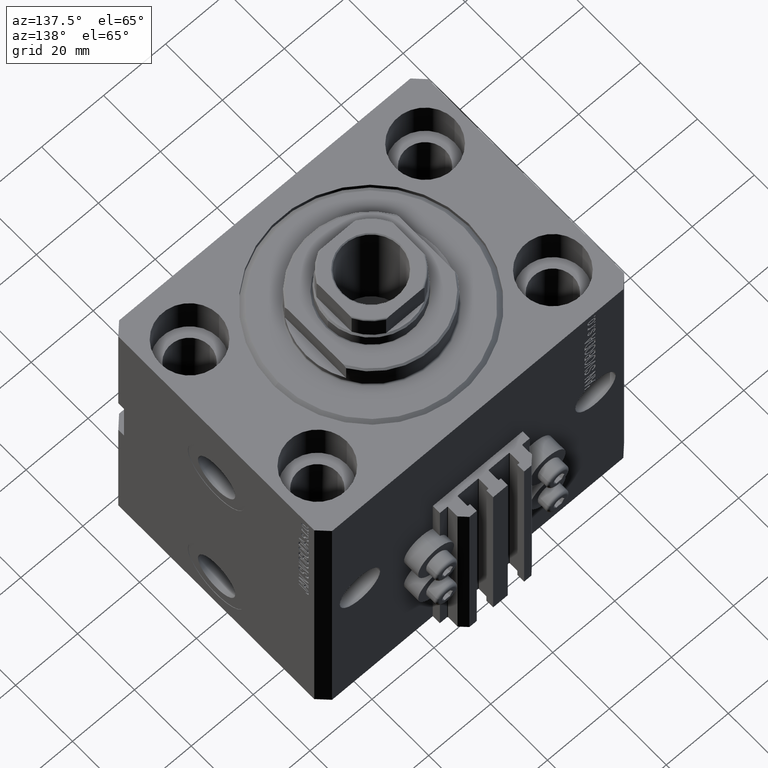
[diagram: clean part render]
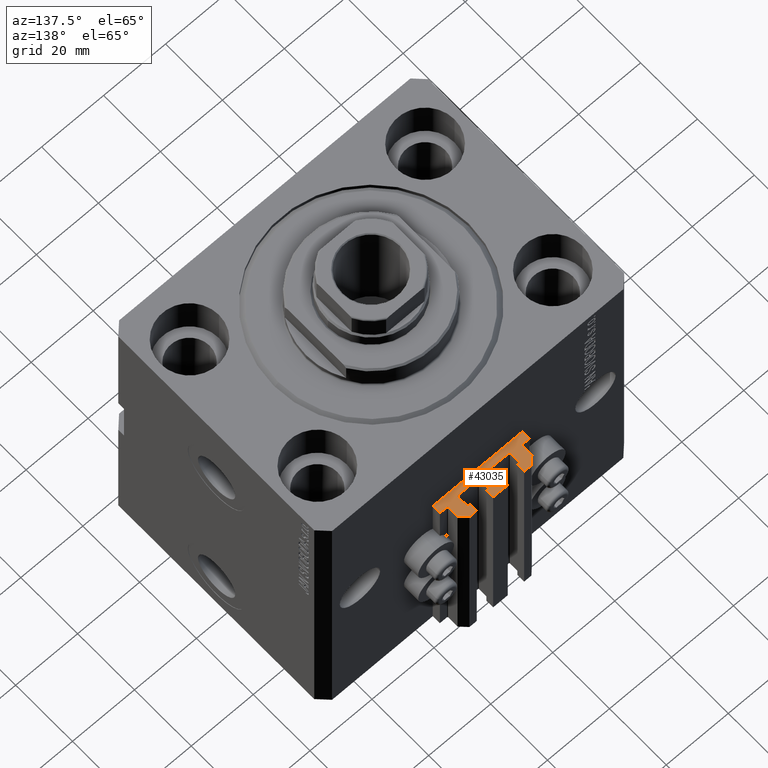
[diagram: same view with one face highlighted and labeled with its STEP entity id]
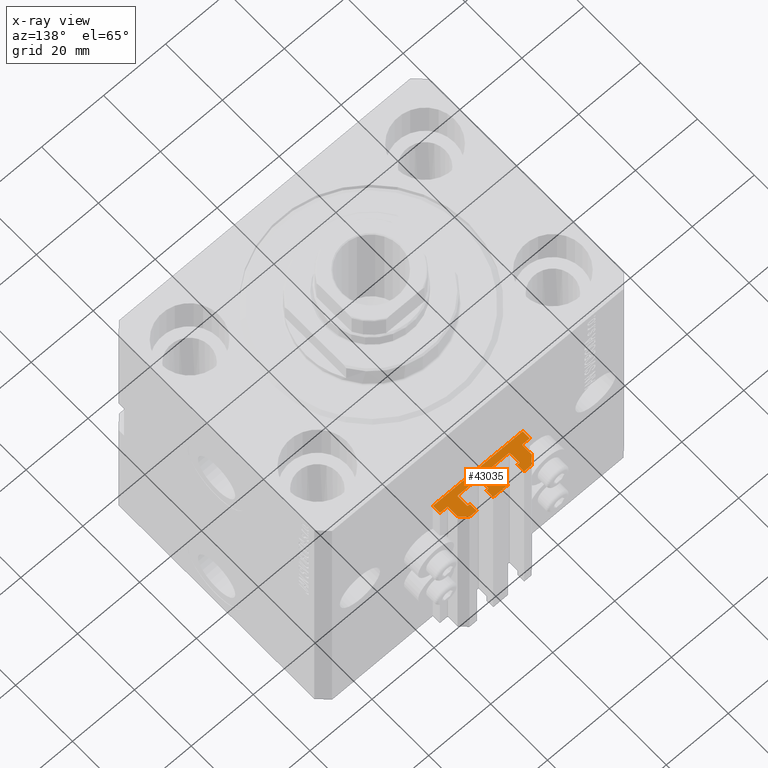
[diagram: x-ray of the same camera — body ghosted, the highlighted face saturated]
A machine part, auxiliary view. The second image highlights one B-rep face of the part: STEP entity #43035.
The next image is the same camera in x-ray: the body ghosted, the highlighted face saturated — about 0% of this face is hidden behind the body in this view.
In plain terms, the highlighted planar face has unit normal (0, 0, 1).
Its self-contained STEP definition (entity closure, byte-faithful):
#80 = ORIENTED_EDGE ( 'NONE', *, *, #38251, .T. ) ;
#95 = CARTESIAN_POINT ( 'NONE',  ( -1.800000000000000933, 39.50000000000000000, -33.00000000000000000 ) ) ;
#199 = DIRECTION ( 'NONE',  ( -1.084202172485506406E-15, 1.000000000000000000, 0.000000000000000000 ) ) ;
#286 = CARTESIAN_POINT ( 'NONE',  ( 14.49999999999999645, 40.00000000000002132, -33.00000000000000000 ) ) ;
#345 = ORIENTED_EDGE ( 'NONE', *, *, #15092, .T. ) ;
#346 = CARTESIAN_POINT ( 'NONE',  ( -2.350000000000003642, 45.50000000000000711, -33.00000000000000000 ) ) ;
#475 = DIRECTION ( 'NONE',  ( 0.000000000000000000, 0.000000000000000000, 1.000000000000000000 ) ) ;
#511 = CARTESIAN_POINT ( 'NONE',  ( -2.350000000000003197, 43.10000000000000853, -33.00000000000000000 ) ) ;
#584 = CARTESIAN_POINT ( 'NONE',  ( -8.199999999999997513, 42.89999999999999147, -33.00000000000000000 ) ) ;
#775 = ORIENTED_EDGE ( 'NONE', *, *, #39993, .F. ) ;
#938 = VERTEX_POINT ( 'NONE', #19742 ) ;
#1024 = DIRECTION ( 'NONE',  ( 1.000000000000000000, 0.000000000000000000, 0.000000000000000000 ) ) ;
#1122 = CARTESIAN_POINT ( 'NONE',  ( 14.49999999999999645, 40.00000000000002132, -33.00000000000000000 ) ) ;
#1265 = VERTEX_POINT ( 'NONE', #19207 ) ;
#1409 = CARTESIAN_POINT ( 'NONE',  ( -1.600000000000000755, 39.69999999999999574, -33.00000000000000000 ) ) ;
#1493 = VERTEX_POINT ( 'NONE', #4433 ) ;
#1573 = LINE ( 'NONE', #34391, #15456 ) ;
#1580 = VECTOR ( 'NONE', #4726, 1000.000000000000000 ) ;
#1611 = AXIS2_PLACEMENT_3D ( 'NONE', #27897, #17268, #31991 ) ;
#1730 = LINE ( 'NONE', #23682, #34861 ) ;
#1841 = CARTESIAN_POINT ( 'NONE',  ( -2.350000000000003642, 45.50000000000000711, -33.00000000000000000 ) ) ;
#2160 = AXIS2_PLACEMENT_3D ( 'NONE', #40438, #11234, #40668 ) ;
#2395 = VERTEX_POINT ( 'NONE', #22499 ) ;
#2660 = ORIENTED_EDGE ( 'NONE', *, *, #23670, .T. ) ;
#2663 = EDGE_CURVE ( 'NONE', #2395, #938, #42410, .T. ) ;
#2688 = CARTESIAN_POINT ( 'NONE',  ( 9.999999999999998224, 45.50000000000002842, -33.00000000000000000 ) ) ;
#2888 = VECTOR ( 'NONE', #35033, 1000.000000000000000 ) ;
#3112 = ORIENTED_EDGE ( 'NONE', *, *, #12621, .T. ) ;
#3243 = VECTOR ( 'NONE', #10187, 1000.000000000000000 ) ;
#3783 = EDGE_CURVE ( 'NONE', #1493, #36141, #5776, .T. ) ;
#3835 = ORIENTED_EDGE ( 'NONE', *, *, #32287, .F. ) ;
#4053 = LINE ( 'NONE', #18067, #30907 ) ;
#4072 = EDGE_CURVE ( 'NONE', #10357, #5922, #4053, .T. ) ;
#4170 = DIRECTION ( 'NONE',  ( 1.000000000000000000, 0.000000000000000000, 0.000000000000000000 ) ) ;
#4278 = CARTESIAN_POINT ( 'NONE',  ( 2.349999999999999645, 43.10000000000000853, -33.00000000000000000 ) ) ;
#4433 = CARTESIAN_POINT ( 'NONE',  ( -14.50000000000000000, 37.50000000000000000, -33.00000000000000000 ) ) ;
#4602 = VERTEX_POINT ( 'NONE', #47119 ) ;
#4690 = VECTOR ( 'NONE', #14868, 1000.000000000000000 ) ;
#4704 = CARTESIAN_POINT ( 'NONE',  ( -1.800000000000000933, 43.10000000000001563, -33.00000000000000000 ) ) ;
#4726 = DIRECTION ( 'NONE',  ( 0.000000000000000000, 1.000000000000000000, 0.000000000000000000 ) ) ;
#4813 = CARTESIAN_POINT ( 'NONE',  ( -7.650000000000002132, 45.49999999999999289, -33.00000000000000000 ) ) ;
#4916 = EDGE_LOOP ( 'NONE', ( #41043, #24273, #12367, #11560, #30755, #35831, #34336, #45910, #345, #28757, #27798, #80, #30742, #20328, #43722, #17970, #20993, #18286, #36906, #775, #21267, #16175, #3835, #28533, #40026, #26306, #23809, #10354, #42883, #25361, #12588, #3112, #2660, #32634, #18119, #36344 ) ) ;
#5093 = DIRECTION ( 'NONE',  ( 1.000000000000000000, -1.261617073437681085E-14, 0.000000000000000000 ) ) ;
#5567 = CARTESIAN_POINT ( 'NONE',  ( 1.800000000000000933, 43.10000000000001563, -33.00000000000000000 ) ) ;
#5601 = LINE ( 'NONE', #16919, #2888 ) ;
#5708 = EDGE_CURVE ( 'NONE', #31385, #1493, #16725, .T. ) ;
#5776 = LINE ( 'NONE', #27730, #28594 ) ;
#5922 = VERTEX_POINT ( 'NONE', #14778 ) ;
#6008 = CARTESIAN_POINT ( 'NONE',  ( -12.00000000000000000, 43.49999999999998579, -33.00000000000000000 ) ) ;
#6021 = CARTESIAN_POINT ( 'NONE',  ( -10.00000000000000000, 45.49999999999999289, -33.00000000000000000 ) ) ;
#6311 = VERTEX_POINT ( 'NONE', #11320 ) ;
#6342 = CARTESIAN_POINT ( 'NONE',  ( -14.50000000000000000, 39.99999999999999289, -33.00000000000000000 ) ) ;
#6443 = CARTESIAN_POINT ( 'NONE',  ( -8.199999999999997513, 39.69999999999999574, -33.00000000000000000 ) ) ;
#6502 = CARTESIAN_POINT ( 'NONE',  ( 7.649999999999998579, 43.10000000000002984, -33.00000000000000000 ) ) ;
#6637 = VECTOR ( 'NONE', #36237, 1000.000000000000000 ) ;
#6946 = EDGE_CURVE ( 'NONE', #25512, #32521, #24685, .T. ) ;
#7015 = DIRECTION ( 'NONE',  ( 0.000000000000000000, 0.000000000000000000, 1.000000000000000000 ) ) ;
#7113 = EDGE_CURVE ( 'NONE', #23927, #1265, #1730, .T. ) ;
#7428 = DIRECTION ( 'NONE',  ( 0.000000000000000000, 1.000000000000000000, 0.000000000000000000 ) ) ;
#7547 = VERTEX_POINT ( 'NONE', #25998 ) ;
#7678 = LINE ( 'NONE', #25779, #31174 ) ;
#7709 = EDGE_CURVE ( 'NONE', #10392, #13571, #35615, .T. ) ;
#7894 = DIRECTION ( 'NONE',  ( -5.256737805990328981E-16, 1.000000000000000000, 0.000000000000000000 ) ) ;
#8014 = VERTEX_POINT ( 'NONE', #46806 ) ;
#8336 = LINE ( 'NONE', #37761, #1580 ) ;
#8649 = CARTESIAN_POINT ( 'NONE',  ( 8.200000000000001066, 43.10000000000002984, -33.00000000000000000 ) ) ;
#8711 = VECTOR ( 'NONE', #11669, 1000.000000000000000 ) ;
#8881 = VERTEX_POINT ( 'NONE', #6008 ) ;
#9159 = CARTESIAN_POINT ( 'NONE',  ( 14.49999999999999645, 37.50000000000000711, -33.00000000000000000 ) ) ;
#9272 = LINE ( 'NONE', #20383, #41285 ) ;
#10187 = DIRECTION ( 'NONE',  ( 0.000000000000000000, -1.000000000000000000, 0.000000000000000000 ) ) ;
#10354 = ORIENTED_EDGE ( 'NONE', *, *, #4072, .T. ) ;
#10357 = VERTEX_POINT ( 'NONE', #17472 ) ;
#10392 = VERTEX_POINT ( 'NONE', #95 ) ;
#10693 = EDGE_CURVE ( 'NONE', #40374, #30904, #24109, .T. ) ;
#10740 = DIRECTION ( 'NONE',  ( 1.000000000000000000, 1.261617073437673039E-14, 0.000000000000000000 ) ) ;
#10927 = CARTESIAN_POINT ( 'NONE',  ( -2.350000000000003642, 45.50000000000000711, -33.00000000000000000 ) ) ;
#11234 = DIRECTION ( 'NONE',  ( 0.000000000000000000, 0.000000000000000000, 1.000000000000000000 ) ) ;
#11320 = CARTESIAN_POINT ( 'NONE',  ( 8.199999999999999289, 39.50000000000000711, -33.00000000000000000 ) ) ;
#11408 = EDGE_CURVE ( 'NONE', #4602, #26925, #27167, .T. ) ;
#11425 = CARTESIAN_POINT ( 'NONE',  ( 7.649999999999998579, 45.50000000000002842, -33.00000000000000000 ) ) ;
#11560 = ORIENTED_EDGE ( 'NONE', *, *, #19380, .T. ) ;
#11665 = DIRECTION ( 'NONE',  ( 1.000000000000000000, 0.000000000000000000, 0.000000000000000000 ) ) ;
#11669 = DIRECTION ( 'NONE',  ( -1.000000000000000000, 0.000000000000000000, 0.000000000000000000 ) ) ;
#12074 = EDGE_CURVE ( 'NONE', #40246, #29031, #20285, .T. ) ;
#12113 = CIRCLE ( 'NONE', #25246, 0.1999999999999994282 ) ;
#12367 = ORIENTED_EDGE ( 'NONE', *, *, #46629, .T. ) ;
#12588 = ORIENTED_EDGE ( 'NONE', *, *, #38087, .T. ) ;
#12621 = EDGE_CURVE ( 'NONE', #42618, #17104, #40623, .T. ) ;
#12703 = DIRECTION ( 'NONE',  ( -1.000000000000000000, 0.000000000000000000, 0.000000000000000000 ) ) ;
#12835 = VERTEX_POINT ( 'NONE', #36708 ) ;
#13021 = LINE ( 'NONE', #5567, #31103 ) ;
#13126 = CARTESIAN_POINT ( 'NONE',  ( 12.00000000000000000, 43.50000000000002132, -33.00000000000000000 ) ) ;
#13571 = VERTEX_POINT ( 'NONE', #17169 ) ;
#13884 = FACE_OUTER_BOUND ( 'NONE', #4916, .T. ) ;
#14081 = LINE ( 'NONE', #10927, #35601 ) ;
#14778 = CARTESIAN_POINT ( 'NONE',  ( -8.400000000000000355, 42.89999999999999147, -33.00000000000000000 ) ) ;
#14868 = DIRECTION ( 'NONE',  ( -1.000000000000000000, -1.084202172485504828E-15, 0.000000000000000000 ) ) ;
#15092 = EDGE_CURVE ( 'NONE', #39889, #41061, #7678, .T. ) ;
#15195 = DIRECTION ( 'NONE',  ( 1.000000000000000000, 0.000000000000000000, 0.000000000000000000 ) ) ;
#15255 = CARTESIAN_POINT ( 'NONE',  ( -1.800000000000000933, 42.90000000000000568, -33.00000000000000000 ) ) ;
#15456 = VECTOR ( 'NONE', #16282, 1000.000000000000000 ) ;
#15533 = DIRECTION ( 'NONE',  ( 0.000000000000000000, 0.000000000000000000, 1.000000000000000000 ) ) ;
#15553 = CARTESIAN_POINT ( 'NONE',  ( -14.50000000000000000, 39.99999999999999289, -33.00000000000000000 ) ) ;
#15801 = CIRCLE ( 'NONE', #19637, 0.1999999999999987899 ) ;
#15847 = CARTESIAN_POINT ( 'NONE',  ( 12.00000000000000178, 40.20000000000002416, -33.00000000000000000 ) ) ;
#16079 = EDGE_CURVE ( 'NONE', #10357, #13571, #15801, .T. ) ;
#16175 = ORIENTED_EDGE ( 'NONE', *, *, #16734, .T. ) ;
#16240 = AXIS2_PLACEMENT_3D ( 'NONE', #40281, #475, #25573 ) ;
#16282 = DIRECTION ( 'NONE',  ( -5.421010862427508365E-16, -1.000000000000000000, 0.000000000000000000 ) ) ;
#16358 = VECTOR ( 'NONE', #31932, 1000.000000000000114 ) ;
#16564 = EDGE_CURVE ( 'NONE', #20744, #12835, #19475, .T. ) ;
#16725 = LINE ( 'NONE', #6342, #3243 ) ;
#16734 = EDGE_CURVE ( 'NONE', #46523, #31471, #24515, .T. ) ;
#16919 = CARTESIAN_POINT ( 'NONE',  ( 9.999999999999998224, 45.50000000000002842, -33.00000000000000000 ) ) ;
#16960 = VECTOR ( 'NONE', #37479, 1000.000000000000000 ) ;
#17104 = VERTEX_POINT ( 'NONE', #18338 ) ;
#17169 = CARTESIAN_POINT ( 'NONE',  ( -8.199999999999997513, 39.50000000000000000, -33.00000000000000000 ) ) ;
#17205 = CARTESIAN_POINT ( 'NONE',  ( 12.00000000000000000, 43.50000000000002132, -33.00000000000000000 ) ) ;
#17268 = DIRECTION ( 'NONE',  ( 0.000000000000000000, 0.000000000000000000, 1.000000000000000000 ) ) ;
#17472 = CARTESIAN_POINT ( 'NONE',  ( -8.399999999999996803, 39.69999999999999574, -33.00000000000000000 ) ) ;
#17602 = DIRECTION ( 'NONE',  ( 0.000000000000000000, 1.000000000000000000, 0.000000000000000000 ) ) ;
#17941 = VECTOR ( 'NONE', #23070, 1000.000000000000000 ) ;
#17970 = ORIENTED_EDGE ( 'NONE', *, *, #43350, .T. ) ;
#18067 = CARTESIAN_POINT ( 'NONE',  ( -8.399999999999996803, 39.69999999999999574, -33.00000000000000000 ) ) ;
#18119 = ORIENTED_EDGE ( 'NONE', *, *, #10693, .F. ) ;
#18286 = ORIENTED_EDGE ( 'NONE', *, *, #47673, .T. ) ;
#18338 = CARTESIAN_POINT ( 'NONE',  ( -10.00000000000000000, 45.49999999999999289, -33.00000000000000000 ) ) ;
#18643 = DIRECTION ( 'NONE',  ( 1.807003620809174632E-16, -1.000000000000000000, 0.000000000000000000 ) ) ;
#18650 = EDGE_CURVE ( 'NONE', #40374, #31385, #9272, .T. ) ;
#18671 = LINE ( 'NONE', #346, #16960 ) ;
#18985 = DIRECTION ( 'NONE',  ( 0.000000000000000000, 1.000000000000000000, 0.000000000000000000 ) ) ;
#19207 = CARTESIAN_POINT ( 'NONE',  ( -7.650000000000002132, 43.09999999999999432, -33.00000000000000000 ) ) ;
#19326 = DIRECTION ( 'NONE',  ( 0.000000000000000000, 0.000000000000000000, 1.000000000000000000 ) ) ;
#19380 = EDGE_CURVE ( 'NONE', #27329, #8014, #33338, .T. ) ;
#19475 = LINE ( 'NONE', #4278, #32760 ) ;
#19637 = AXIS2_PLACEMENT_3D ( 'NONE', #6443, #25022, #20920 ) ;
#19742 = CARTESIAN_POINT ( 'NONE',  ( 1.600000000000000533, 42.90000000000000568, -33.00000000000000000 ) ) ;
#20285 = CIRCLE ( 'NONE', #47229, 0.1999999999999998723 ) ;
#20328 = ORIENTED_EDGE ( 'NONE', *, *, #38154, .T. ) ;
#20383 = CARTESIAN_POINT ( 'NONE',  ( -12.20000000000000107, 39.99999999999998579, -33.00000000000000000 ) ) ;
#20663 = AXIS2_PLACEMENT_3D ( 'NONE', #15255, #22030, #4170 ) ;
#20725 = DIRECTION ( 'NONE',  ( 1.000000000000000000, 2.392722035830078972E-16, 0.000000000000000000 ) ) ;
#20735 = DIRECTION ( 'NONE',  ( -0.7071067811865460184, -0.7071067811865490160, 0.000000000000000000 ) ) ;
#20744 = VERTEX_POINT ( 'NONE', #24445 ) ;
#20920 = DIRECTION ( 'NONE',  ( 1.000000000000000000, 0.000000000000000000, 0.000000000000000000 ) ) ;
#20993 = ORIENTED_EDGE ( 'NONE', *, *, #2663, .F. ) ;
#21059 = EDGE_CURVE ( 'NONE', #25806, #25512, #37314, .T. ) ;
#21267 = ORIENTED_EDGE ( 'NONE', *, *, #44844, .T. ) ;
#21678 = CARTESIAN_POINT ( 'NONE',  ( 14.49999999999999645, 37.50000000000000711, -33.00000000000000000 ) ) ;
#22030 = DIRECTION ( 'NONE',  ( 0.000000000000000000, 0.000000000000000000, 1.000000000000000000 ) ) ;
#22196 = EDGE_CURVE ( 'NONE', #32521, #39889, #5601, .T. ) ;
#22499 = CARTESIAN_POINT ( 'NONE',  ( 1.800000000000000933, 43.10000000000001563, -33.00000000000000000 ) ) ;
#22975 = VECTOR ( 'NONE', #20735, 1000.000000000000227 ) ;
#23070 = DIRECTION ( 'NONE',  ( -6.776263578034385456E-17, -1.000000000000000000, 0.000000000000000000 ) ) ;
#23347 = VECTOR ( 'NONE', #7428, 1000.000000000000000 ) ;
#23624 = VECTOR ( 'NONE', #7894, 1000.000000000000000 ) ;
#23670 = EDGE_CURVE ( 'NONE', #17104, #8881, #47000, .T. ) ;
#23682 = CARTESIAN_POINT ( 'NONE',  ( -8.199999999999999289, 43.09999999999999432, -33.00000000000000000 ) ) ;
#23809 = ORIENTED_EDGE ( 'NONE', *, *, #16079, .F. ) ;
#23927 = VERTEX_POINT ( 'NONE', #35875 ) ;
#24009 = EDGE_CURVE ( 'NONE', #7547, #39829, #29023, .T. ) ;
#24022 = CARTESIAN_POINT ( 'NONE',  ( -1.600000000000000533, 42.90000000000000568, -33.00000000000000000 ) ) ;
#24109 = CIRCLE ( 'NONE', #41044, 0.2000000000000005107 ) ;
#24273 = ORIENTED_EDGE ( 'NONE', *, *, #3783, .T. ) ;
#24367 = LINE ( 'NONE', #32083, #33256 ) ;
#24445 = CARTESIAN_POINT ( 'NONE',  ( 2.349999999999999645, 43.10000000000000853, -33.00000000000000000 ) ) ;
#24515 = LINE ( 'NONE', #25468, #36604 ) ;
#24533 = DIRECTION ( 'NONE',  ( 0.000000000000000000, -1.000000000000000000, 0.000000000000000000 ) ) ;
#24542 = EDGE_CURVE ( 'NONE', #41061, #39829, #24840, .T. ) ;
#24685 = LINE ( 'NONE', #17205, #16358 ) ;
#24840 = LINE ( 'NONE', #6502, #28264 ) ;
#25022 = DIRECTION ( 'NONE',  ( 0.000000000000000000, 0.000000000000000000, 1.000000000000000000 ) ) ;
#25246 = AXIS2_PLACEMENT_3D ( 'NONE', #40753, #30628, #37374 ) ;
#25281 = AXIS2_PLACEMENT_3D ( 'NONE', #47281, #28969, #43663 ) ;
#25361 = ORIENTED_EDGE ( 'NONE', *, *, #7113, .T. ) ;
#25468 = CARTESIAN_POINT ( 'NONE',  ( -2.350000000000003197, 43.10000000000000853, -33.00000000000000000 ) ) ;
#25512 = VERTEX_POINT ( 'NONE', #13126 ) ;
#25573 = DIRECTION ( 'NONE',  ( 1.000000000000000000, 0.000000000000000000, 0.000000000000000000 ) ) ;
#25766 = LINE ( 'NONE', #21678, #23347 ) ;
#25779 = CARTESIAN_POINT ( 'NONE',  ( 7.649999999999998579, 45.50000000000002842, -33.00000000000000000 ) ) ;
#25806 = VERTEX_POINT ( 'NONE', #43446 ) ;
#25998 = CARTESIAN_POINT ( 'NONE',  ( 8.400000000000003908, 42.90000000000001990, -33.00000000000000000 ) ) ;
#26306 = ORIENTED_EDGE ( 'NONE', *, *, #7709, .T. ) ;
#26574 = CARTESIAN_POINT ( 'NONE',  ( -12.20000000000000107, 40.19999999999998863, -33.00000000000000000 ) ) ;
#26591 = CARTESIAN_POINT ( 'NONE',  ( 8.400000000000000355, 39.70000000000000995, -33.00000000000000000 ) ) ;
#26925 = VERTEX_POINT ( 'NONE', #1409 ) ;
#27049 = DIRECTION ( 'NONE',  ( 1.000000000000000000, 0.000000000000000000, 0.000000000000000000 ) ) ;
#27167 = LINE ( 'NONE', #24022, #17941 ) ;
#27329 = VERTEX_POINT ( 'NONE', #1122 ) ;
#27730 = CARTESIAN_POINT ( 'NONE',  ( -14.50000000000000000, 37.50000000000000000, -33.00000000000000000 ) ) ;
#27798 = ORIENTED_EDGE ( 'NONE', *, *, #24009, .F. ) ;
#27825 = CIRCLE ( 'NONE', #16240, 0.2000000000000022593 ) ;
#27897 = CARTESIAN_POINT ( 'NONE',  ( 12.20000000000000107, 40.20000000000002416, -33.00000000000000000 ) ) ;
#27946 = DIRECTION ( 'NONE',  ( 1.000000000000000000, 0.000000000000000000, 0.000000000000000000 ) ) ;
#28264 = VECTOR ( 'NONE', #47486, 1000.000000000000000 ) ;
#28533 = ORIENTED_EDGE ( 'NONE', *, *, #11408, .T. ) ;
#28594 = VECTOR ( 'NONE', #20725, 1000.000000000000000 ) ;
#28757 = ORIENTED_EDGE ( 'NONE', *, *, #24542, .T. ) ;
#28777 = CARTESIAN_POINT ( 'NONE',  ( -12.00000000000000000, 40.19999999999998863, -33.00000000000000000 ) ) ;
#28969 = DIRECTION ( 'NONE',  ( 0.000000000000000000, 0.000000000000000000, 1.000000000000000000 ) ) ;
#29015 = VERTEX_POINT ( 'NONE', #1841 ) ;
#29023 = CIRCLE ( 'NONE', #2160, 0.2000000000000040079 ) ;
#29031 = VERTEX_POINT ( 'NONE', #46435 ) ;
#29303 = AXIS2_PLACEMENT_3D ( 'NONE', #584, #15533, #11665 ) ;
#29680 = CARTESIAN_POINT ( 'NONE',  ( 1.800000000000000933, 42.90000000000000568, -33.00000000000000000 ) ) ;
#29808 = CARTESIAN_POINT ( 'NONE',  ( 8.199999999999999289, 39.50000000000000711, -33.00000000000000000 ) ) ;
#30443 = CARTESIAN_POINT ( 'NONE',  ( -12.20000000000000107, 39.99999999999998579, -33.00000000000000000 ) ) ;
#30628 = DIRECTION ( 'NONE',  ( 0.000000000000000000, 0.000000000000000000, 1.000000000000000000 ) ) ;
#30742 = ORIENTED_EDGE ( 'NONE', *, *, #31851, .F. ) ;
#30755 = ORIENTED_EDGE ( 'NONE', *, *, #42484, .F. ) ;
#30904 = VERTEX_POINT ( 'NONE', #28777 ) ;
#30907 = VECTOR ( 'NONE', #199, 1000.000000000000000 ) ;
#30931 = EDGE_CURVE ( 'NONE', #10392, #26925, #12113, .T. ) ;
#31103 = VECTOR ( 'NONE', #5093, 1000.000000000000000 ) ;
#31174 = VECTOR ( 'NONE', #36860, 1000.000000000000000 ) ;
#31385 = VERTEX_POINT ( 'NONE', #15553 ) ;
#31471 = VERTEX_POINT ( 'NONE', #4704 ) ;
#31851 = EDGE_CURVE ( 'NONE', #6311, #42232, #32197, .T. ) ;
#31932 = DIRECTION ( 'NONE',  ( -0.7071067811865474617, 0.7071067811865474617, 0.000000000000000000 ) ) ;
#31991 = DIRECTION ( 'NONE',  ( 1.000000000000000000, 0.000000000000000000, -0.000000000000000000 ) ) ;
#32083 = CARTESIAN_POINT ( 'NONE',  ( 1.600000000000000533, 39.69999999999999574, -33.00000000000000000 ) ) ;
#32182 = DIRECTION ( 'NONE',  ( -1.000000000000000000, 3.016910393003142859E-15, 0.000000000000000000 ) ) ;
#32197 = CIRCLE ( 'NONE', #25281, 0.1999999999999987899 ) ;
#32246 = CARTESIAN_POINT ( 'NONE',  ( -12.00000000000000000, 43.49999999999998579, -33.00000000000000000 ) ) ;
#32287 = EDGE_CURVE ( 'NONE', #4602, #31471, #41456, .T. ) ;
#32521 = VERTEX_POINT ( 'NONE', #2688 ) ;
#32634 = ORIENTED_EDGE ( 'NONE', *, *, #45600, .T. ) ;
#32760 = VECTOR ( 'NONE', #18985, 1000.000000000000000 ) ;
#33201 = LINE ( 'NONE', #29808, #4690 ) ;
#33256 = VECTOR ( 'NONE', #17602, 1000.000000000000000 ) ;
#33338 = LINE ( 'NONE', #286, #6637 ) ;
#34336 = ORIENTED_EDGE ( 'NONE', *, *, #6946, .T. ) ;
#34391 = CARTESIAN_POINT ( 'NONE',  ( 8.400000000000000355, 42.90000000000001990, -33.00000000000000000 ) ) ;
#34720 = AXIS2_PLACEMENT_3D ( 'NONE', #29680, #7015, #15195 ) ;
#34861 = VECTOR ( 'NONE', #1024, 1000.000000000000000 ) ;
#35033 = DIRECTION ( 'NONE',  ( -1.000000000000000000, 0.000000000000000000, 0.000000000000000000 ) ) ;
#35376 = CARTESIAN_POINT ( 'NONE',  ( -1.800000000000000933, 39.50000000000000000, -33.00000000000000000 ) ) ;
#35601 = VECTOR ( 'NONE', #18643, 1000.000000000000000 ) ;
#35615 = LINE ( 'NONE', #35376, #37958 ) ;
#35831 = ORIENTED_EDGE ( 'NONE', *, *, #21059, .T. ) ;
#35875 = CARTESIAN_POINT ( 'NONE',  ( -8.199999999999999289, 43.09999999999999432, -33.00000000000000000 ) ) ;
#36141 = VERTEX_POINT ( 'NONE', #9159 ) ;
#36237 = DIRECTION ( 'NONE',  ( -1.000000000000000000, 0.000000000000000000, 0.000000000000000000 ) ) ;
#36344 = ORIENTED_EDGE ( 'NONE', *, *, #18650, .T. ) ;
#36604 = VECTOR ( 'NONE', #10740, 1000.000000000000000 ) ;
#36708 = CARTESIAN_POINT ( 'NONE',  ( 2.349999999999999645, 45.50000000000000711, -33.00000000000000000 ) ) ;
#36860 = DIRECTION ( 'NONE',  ( 0.000000000000000000, -1.000000000000000000, 0.000000000000000000 ) ) ;
#36906 = ORIENTED_EDGE ( 'NONE', *, *, #16564, .T. ) ;
#37314 = LINE ( 'NONE', #15847, #23624 ) ;
#37374 = DIRECTION ( 'NONE',  ( 1.000000000000000000, 0.000000000000000000, 0.000000000000000000 ) ) ;
#37479 = DIRECTION ( 'NONE',  ( 1.000000000000000000, 0.000000000000000000, 0.000000000000000000 ) ) ;
#37761 = CARTESIAN_POINT ( 'NONE',  ( -7.650000000000002132, 43.09999999999999432, -33.00000000000000000 ) ) ;
#37766 = CIRCLE ( 'NONE', #29303, 0.2000000000000005107 ) ;
#37844 = DIRECTION ( 'NONE',  ( 0.000000000000000000, 0.000000000000000000, 1.000000000000000000 ) ) ;
#37958 = VECTOR ( 'NONE', #12703, 1000.000000000000000 ) ;
#38087 = EDGE_CURVE ( 'NONE', #1265, #42618, #8336, .T. ) ;
#38154 = EDGE_CURVE ( 'NONE', #6311, #29031, #33201, .T. ) ;
#38251 = EDGE_CURVE ( 'NONE', #7547, #42232, #1573, .T. ) ;
#39829 = VERTEX_POINT ( 'NONE', #8649 ) ;
#39889 = VERTEX_POINT ( 'NONE', #11425 ) ;
#39891 = EDGE_CURVE ( 'NONE', #23927, #5922, #37766, .T. ) ;
#39993 = EDGE_CURVE ( 'NONE', #29015, #12835, #18671, .T. ) ;
#40026 = ORIENTED_EDGE ( 'NONE', *, *, #30931, .F. ) ;
#40093 = CARTESIAN_POINT ( 'NONE',  ( 1.600000000000001421, 39.69999999999999574, -33.00000000000000000 ) ) ;
#40246 = VERTEX_POINT ( 'NONE', #40093 ) ;
#40281 = CARTESIAN_POINT ( 'NONE',  ( 12.20000000000000107, 40.20000000000002416, -33.00000000000000000 ) ) ;
#40374 = VERTEX_POINT ( 'NONE', #30443 ) ;
#40438 = CARTESIAN_POINT ( 'NONE',  ( 8.200000000000001066, 42.90000000000001990, -33.00000000000000000 ) ) ;
#40623 = LINE ( 'NONE', #40859, #8711 ) ;
#40668 = DIRECTION ( 'NONE',  ( 1.000000000000000000, 0.000000000000000000, 0.000000000000000000 ) ) ;
#40753 = CARTESIAN_POINT ( 'NONE',  ( -1.800000000000000933, 39.69999999999999574, -33.00000000000000000 ) ) ;
#40859 = CARTESIAN_POINT ( 'NONE',  ( -7.650000000000002132, 45.49999999999999289, -33.00000000000000000 ) ) ;
#41043 = ORIENTED_EDGE ( 'NONE', *, *, #5708, .T. ) ;
#41044 = AXIS2_PLACEMENT_3D ( 'NONE', #26574, #19326, #27049 ) ;
#41061 = VERTEX_POINT ( 'NONE', #43999 ) ;
#41285 = VECTOR ( 'NONE', #32182, 1000.000000000000000 ) ;
#41456 = CIRCLE ( 'NONE', #20663, 0.2000000000000031197 ) ;
#41788 = VECTOR ( 'NONE', #24533, 1000.000000000000000 ) ;
#42232 = VERTEX_POINT ( 'NONE', #26591 ) ;
#42410 = CIRCLE ( 'NONE', #34720, 0.2000000000000033418 ) ;
#42484 = EDGE_CURVE ( 'NONE', #25806, #8014, #27825, .T. ) ;
#42618 = VERTEX_POINT ( 'NONE', #4813 ) ;
#42845 = LINE ( 'NONE', #32246, #41788 ) ;
#42883 = ORIENTED_EDGE ( 'NONE', *, *, #39891, .F. ) ;
#43035 = ADVANCED_FACE ( 'NONE', ( #13884 ), #46206, .T. ) ;
#43350 = EDGE_CURVE ( 'NONE', #40246, #938, #24367, .T. ) ;
#43446 = CARTESIAN_POINT ( 'NONE',  ( 11.99999999999999822, 40.20000000000002416, -33.00000000000000000 ) ) ;
#43663 = DIRECTION ( 'NONE',  ( 1.000000000000000000, 0.000000000000000000, 0.000000000000000000 ) ) ;
#43722 = ORIENTED_EDGE ( 'NONE', *, *, #12074, .F. ) ;
#43999 = CARTESIAN_POINT ( 'NONE',  ( 7.649999999999998579, 43.10000000000002984, -33.00000000000000000 ) ) ;
#44844 = EDGE_CURVE ( 'NONE', #29015, #46523, #14081, .T. ) ;
#45073 = CARTESIAN_POINT ( 'NONE',  ( 1.800000000000000933, 39.69999999999999574, -33.00000000000000000 ) ) ;
#45600 = EDGE_CURVE ( 'NONE', #8881, #30904, #42845, .T. ) ;
#45910 = ORIENTED_EDGE ( 'NONE', *, *, #22196, .T. ) ;
#46206 = PLANE ( 'NONE',  #1611 ) ;
#46435 = CARTESIAN_POINT ( 'NONE',  ( 1.800000000000000933, 39.50000000000000000, -33.00000000000000000 ) ) ;
#46523 = VERTEX_POINT ( 'NONE', #511 ) ;
#46629 = EDGE_CURVE ( 'NONE', #36141, #27329, #25766, .T. ) ;
#46806 = CARTESIAN_POINT ( 'NONE',  ( 12.20000000000000107, 40.00000000000002132, -33.00000000000000000 ) ) ;
#47000 = LINE ( 'NONE', #6021, #22975 ) ;
#47119 = CARTESIAN_POINT ( 'NONE',  ( -1.599999999999997868, 42.90000000000000568, -33.00000000000000000 ) ) ;
#47229 = AXIS2_PLACEMENT_3D ( 'NONE', #45073, #37844, #27946 ) ;
#47281 = CARTESIAN_POINT ( 'NONE',  ( 8.199999999999999289, 39.70000000000000284, -33.00000000000000000 ) ) ;
#47486 = DIRECTION ( 'NONE',  ( 1.000000000000000000, 0.000000000000000000, 0.000000000000000000 ) ) ;
#47673 = EDGE_CURVE ( 'NONE', #2395, #20744, #13021, .T. ) ;